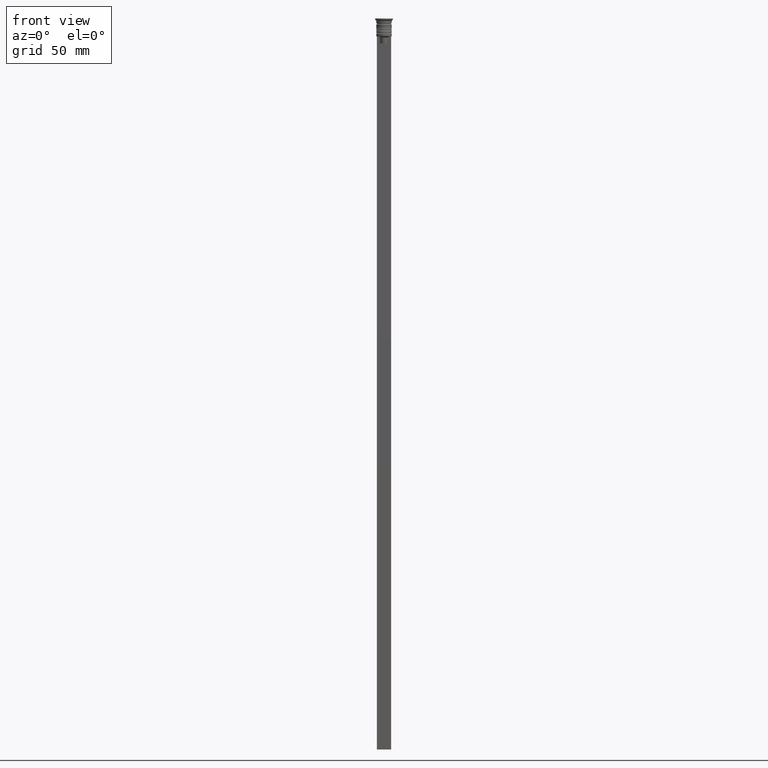
[diagram: clean part render]
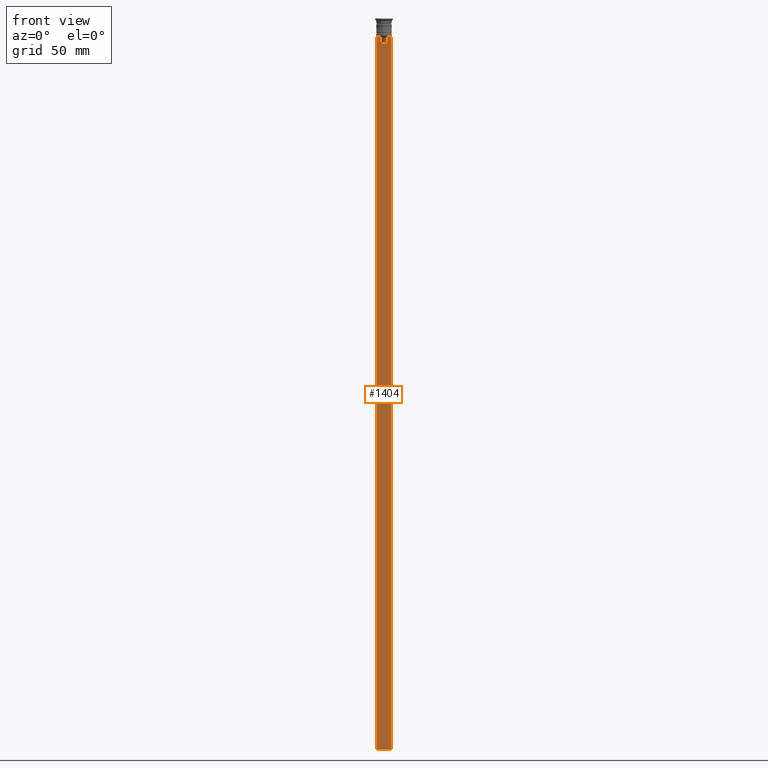
[diagram: same view with one face highlighted and labeled with its STEP entity id]
A machine part, front view. The second image highlights one B-rep face of the part: STEP entity #1404.
In plain terms, the highlighted planar face has unit normal (0, -1, -0).
Its self-contained STEP definition (entity closure, byte-faithful):
#9 = CARTESIAN_POINT ( 'NONE',  ( 1.612451549659713601, -0.3500000000000000333, -10.49999999999999822 ) ) ;
#43 = CARTESIAN_POINT ( 'NONE',  ( -1.612451549659713601, -0.3500000000000000333, 0.000000000000000000 ) ) ;
#108 = CARTESIAN_POINT ( 'NONE',  ( -2.121320343559647270, -0.3500000000000000333, -7.500000000000000000 ) ) ;
#163 = DIRECTION ( 'NONE',  ( 1.000000000000000000, 0.000000000000000000, 0.000000000000000000 ) ) ;
#190 = ORIENTED_EDGE ( 'NONE', *, *, #1393, .F. ) ;
#223 = CARTESIAN_POINT ( 'NONE',  ( -2.121320343559647270, -0.3500000000000000333, -7.500000000000000000 ) ) ;
#241 = LINE ( 'NONE', #1810, #991 ) ;
#269 = VERTEX_POINT ( 'NONE', #2180 ) ;
#306 = DIRECTION ( 'NONE',  ( 0.000000000000000000, -1.000000000000000000, -0.000000000000000000 ) ) ;
#328 = CARTESIAN_POINT ( 'NONE',  ( 2.999999999999995559, -0.3500000000000000333, -7.500000000000000000 ) ) ;
#329 = CARTESIAN_POINT ( 'NONE',  ( 2.999999999999995559, -0.3500000000000000333, -1.459304675784417915 ) ) ;
#330 = EDGE_CURVE ( 'NONE', #2107, #377, #565, .T. ) ;
#343 = VERTEX_POINT ( 'NONE', #9 ) ;
#377 = VERTEX_POINT ( 'NONE', #223 ) ;
#425 = ORIENTED_EDGE ( 'NONE', *, *, #330, .F. ) ;
#433 = CARTESIAN_POINT ( 'NONE',  ( 2.999999999999995559, -0.3500000000000000333, -307.5000000000000000 ) ) ;
#444 = CARTESIAN_POINT ( 'NONE',  ( 1.952040775369266346, -0.3500000000000000333, -7.667021484535463394 ) ) ;
#478 = CARTESIAN_POINT ( 'NONE',  ( 2.121320343559647270, -0.3500000000000000333, -7.500000000000000000 ) ) ;
#484 = VERTEX_POINT ( 'NONE', #934 ) ;
#526 = B_SPLINE_CURVE_WITH_KNOTS ( 'NONE', 3,
 ( #1975, #810, #444, #478 ),
 .UNSPECIFIED., .F., .F.,
 ( 4, 4 ),
 ( 0.008600796474521228696, 0.009317962624906526645 ),
 .UNSPECIFIED. ) ;
#550 = ORIENTED_EDGE ( 'NONE', *, *, #798, .F. ) ;
#565 = LINE ( 'NONE', #328, #748 ) ;
#570 = ORIENTED_EDGE ( 'NONE', *, *, #1386, .F. ) ;
#572 = CARTESIAN_POINT ( 'NONE',  ( -3.000000000000004441, -0.3500000000000000333, -307.5000000000000000 ) ) ;
#693 = CARTESIAN_POINT ( 'NONE',  ( 2.999999999999995559, -0.3500000000000000333, -1.459304675784417915 ) ) ;
#702 = EDGE_CURVE ( 'NONE', #1741, #1831, #1716, .T. ) ;
#731 = CARTESIAN_POINT ( 'NONE',  ( 2.999999999999995559, -0.3500000000000000333, -307.5000000000000000 ) ) ;
#734 = LINE ( 'NONE', #1398, #750 ) ;
#748 = VECTOR ( 'NONE', #1400, 1000.000000000000000 ) ;
#750 = VECTOR ( 'NONE', #2085, 1000.000000000000000 ) ;
#787 = CARTESIAN_POINT ( 'NONE',  ( -1.782527878033862478, -0.3500000000000000333, -7.833794036819864637 ) ) ;
#798 = EDGE_CURVE ( 'NONE', #343, #269, #734, .T. ) ;
#810 = CARTESIAN_POINT ( 'NONE',  ( 1.782523989086206795, -0.3500000000000000333, -7.833797837268088315 ) ) ;
#843 = EDGE_CURVE ( 'NONE', #2107, #1725, #241, .T. ) ;
#867 = LINE ( 'NONE', #1213, #1523 ) ;
#903 = ORIENTED_EDGE ( 'NONE', *, *, #2067, .F. ) ;
#910 = ORIENTED_EDGE ( 'NONE', *, *, #843, .T. ) ;
#934 = CARTESIAN_POINT ( 'NONE',  ( -1.612451549659713601, -0.3500000000000000333, -8.000000000000000000 ) ) ;
#991 = VECTOR ( 'NONE', #1614, 1000.000000000000000 ) ;
#996 = ORIENTED_EDGE ( 'NONE', *, *, #1874, .F. ) ;
#1029 = CARTESIAN_POINT ( 'NONE',  ( 2.121320343559647270, -0.3500000000000000333, -7.500000000000000000 ) ) ;
#1061 = ORIENTED_EDGE ( 'NONE', *, *, #702, .F. ) ;
#1130 = CARTESIAN_POINT ( 'NONE',  ( -1.952043732028444500, -0.3500000000000000333, -7.667018567316270961 ) ) ;
#1165 = LINE ( 'NONE', #43, #1745 ) ;
#1175 = AXIS2_PLACEMENT_3D ( 'NONE', #329, #306, #2174 ) ;
#1213 = CARTESIAN_POINT ( 'NONE',  ( 0.000000000000000000, -0.3500000000000000333, -10.49999999999999822 ) ) ;
#1214 = VERTEX_POINT ( 'NONE', #2073 ) ;
#1242 = VECTOR ( 'NONE', #1408, 1000.000000000000000 ) ;
#1243 = CARTESIAN_POINT ( 'NONE',  ( -3.000000000000004441, -0.3500000000000000333, -7.500000000000000000 ) ) ;
#1248 = EDGE_CURVE ( 'NONE', #1831, #1725, #1799, .T. ) ;
#1252 = CARTESIAN_POINT ( 'NONE',  ( 2.999999999999995559, -0.3500000000000000333, -7.500000000000000000 ) ) ;
#1342 = VECTOR ( 'NONE', #1727, 1000.000000000000000 ) ;
#1386 = EDGE_CURVE ( 'NONE', #1942, #1741, #2155, .T. ) ;
#1393 = EDGE_CURVE ( 'NONE', #269, #1942, #526, .T. ) ;
#1398 = CARTESIAN_POINT ( 'NONE',  ( 1.612451549659713601, -0.3500000000000000333, 0.000000000000000000 ) ) ;
#1400 = DIRECTION ( 'NONE',  ( 1.000000000000000000, 0.000000000000000000, 0.000000000000000000 ) ) ;
#1404 = ADVANCED_FACE ( 'NONE', ( #1660 ), #1832, .T. ) ;
#1408 = DIRECTION ( 'NONE',  ( -1.000000000000000000, 0.000000000000000000, 0.000000000000000000 ) ) ;
#1476 = DIRECTION ( 'NONE',  ( 1.000000000000000000, 0.000000000000000000, 0.000000000000000000 ) ) ;
#1485 = CARTESIAN_POINT ( 'NONE',  ( -1.612451549659713601, -0.3500000000000000333, -8.000000000000000000 ) ) ;
#1523 = VECTOR ( 'NONE', #163, 1000.000000000000000 ) ;
#1527 = B_SPLINE_CURVE_WITH_KNOTS ( 'NONE', 3,
 ( #108, #1130, #787, #1485 ),
 .UNSPECIFIED., .F., .F.,
 ( 4, 4 ),
 ( 0.003684653461239337929, 0.004398058763641257696 ),
 .UNSPECIFIED. ) ;
#1614 = DIRECTION ( 'NONE',  ( 0.000000000000000000, 0.000000000000000000, -1.000000000000000000 ) ) ;
#1648 = EDGE_CURVE ( 'NONE', #1214, #343, #867, .T. ) ;
#1660 = FACE_OUTER_BOUND ( 'NONE', #1796, .T. ) ;
#1694 = DIRECTION ( 'NONE',  ( 0.000000000000000000, 0.000000000000000000, -1.000000000000000000 ) ) ;
#1716 = LINE ( 'NONE', #693, #1342 ) ;
#1725 = VERTEX_POINT ( 'NONE', #572 ) ;
#1727 = DIRECTION ( 'NONE',  ( 0.000000000000000000, 0.000000000000000000, -1.000000000000000000 ) ) ;
#1741 = VERTEX_POINT ( 'NONE', #1252 ) ;
#1745 = VECTOR ( 'NONE', #1694, 1000.000000000000000 ) ;
#1794 = VECTOR ( 'NONE', #1476, 1000.000000000000000 ) ;
#1796 = EDGE_LOOP ( 'NONE', ( #996, #425, #910, #1878, #1061, #570, #190, #550, #1868, #903 ) ) ;
#1799 = LINE ( 'NONE', #731, #1242 ) ;
#1810 = CARTESIAN_POINT ( 'NONE',  ( -3.000000000000004441, -0.3500000000000000333, -1.459304675784417915 ) ) ;
#1831 = VERTEX_POINT ( 'NONE', #433 ) ;
#1832 = PLANE ( 'NONE',  #1175 ) ;
#1868 = ORIENTED_EDGE ( 'NONE', *, *, #1648, .F. ) ;
#1874 = EDGE_CURVE ( 'NONE', #377, #484, #1527, .T. ) ;
#1878 = ORIENTED_EDGE ( 'NONE', *, *, #1248, .F. ) ;
#1942 = VERTEX_POINT ( 'NONE', #1029 ) ;
#1975 = CARTESIAN_POINT ( 'NONE',  ( 1.612451549659713601, -0.3500000000000000333, -8.000000000000000000 ) ) ;
#2067 = EDGE_CURVE ( 'NONE', #484, #1214, #1165, .T. ) ;
#2073 = CARTESIAN_POINT ( 'NONE',  ( -1.612451549659713601, -0.3500000000000000333, -10.49999999999999822 ) ) ;
#2085 = DIRECTION ( 'NONE',  ( -0.000000000000000000, -0.000000000000000000, 1.000000000000000000 ) ) ;
#2107 = VERTEX_POINT ( 'NONE', #1243 ) ;
#2145 = CARTESIAN_POINT ( 'NONE',  ( 2.999999999999995559, -0.3500000000000000333, -7.500000000000000000 ) ) ;
#2155 = LINE ( 'NONE', #2145, #1794 ) ;
#2174 = DIRECTION ( 'NONE',  ( 0.000000000000000000, 0.000000000000000000, -1.000000000000000000 ) ) ;
#2180 = CARTESIAN_POINT ( 'NONE',  ( 1.612451549659713601, -0.3500000000000000333, -8.000000000000000000 ) ) ;